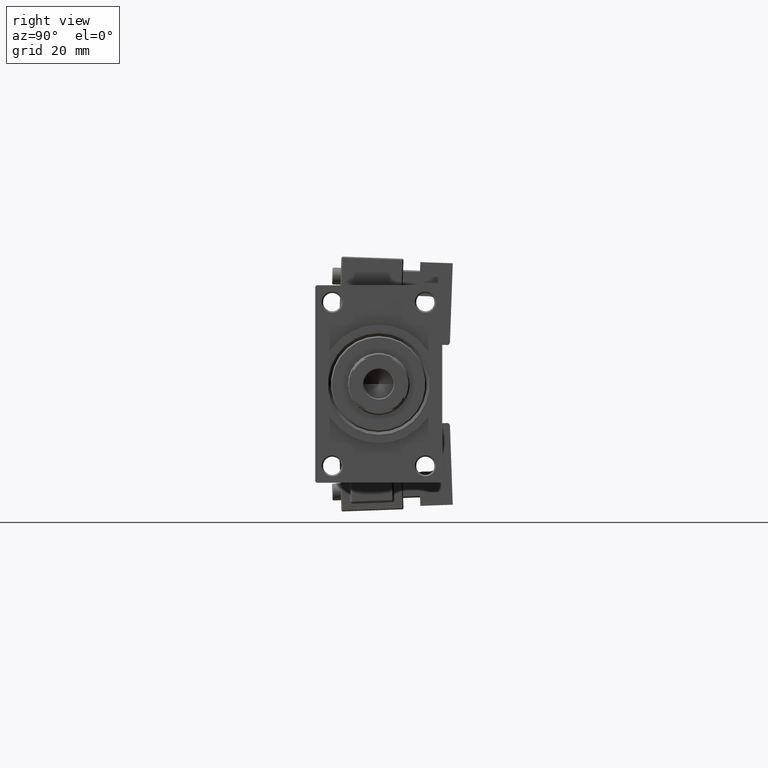
[diagram: clean part render]
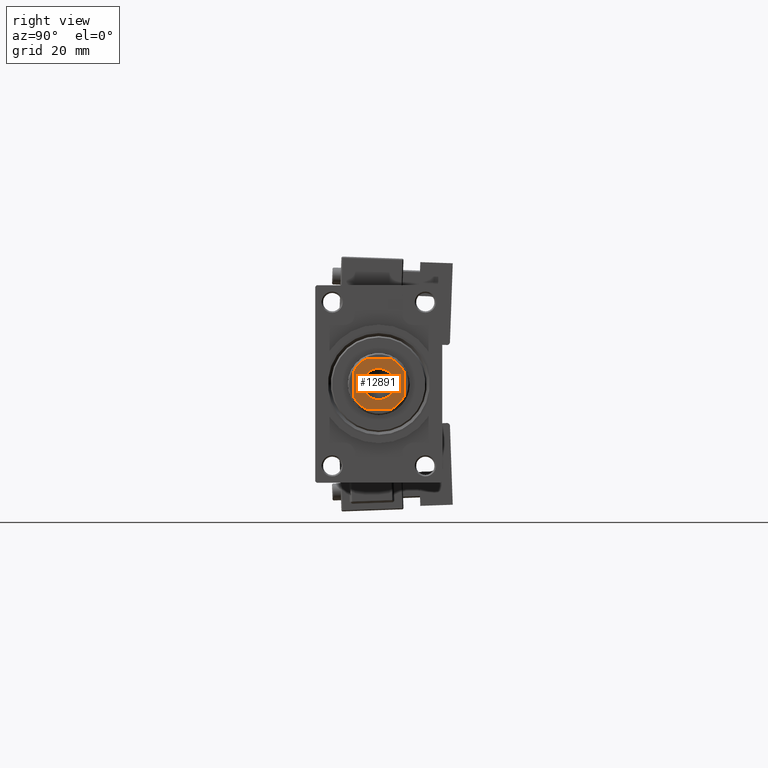
[diagram: same view with one face highlighted and labeled with its STEP entity id]
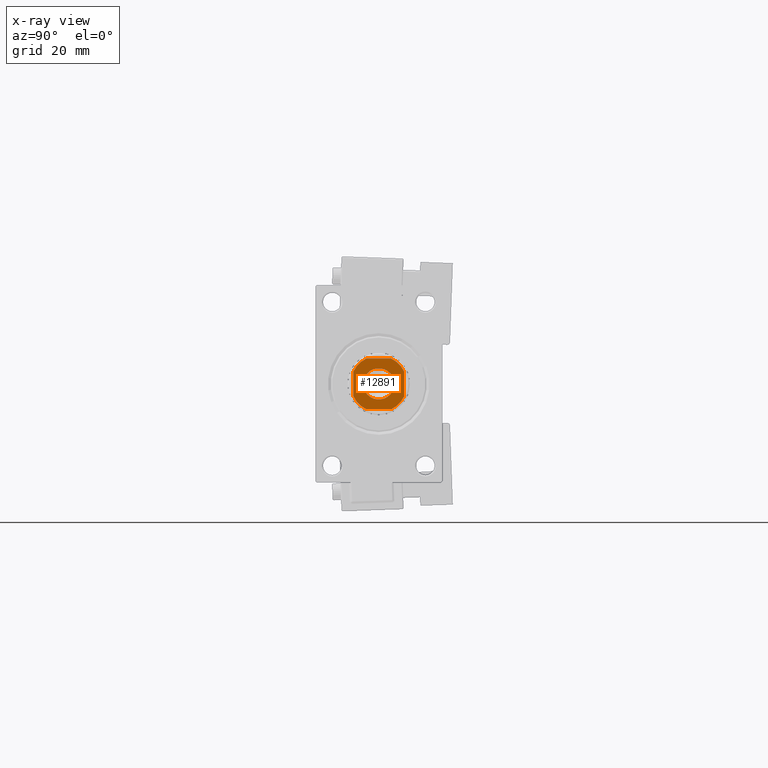
[diagram: x-ray of the same camera — body ghosted, the highlighted face saturated]
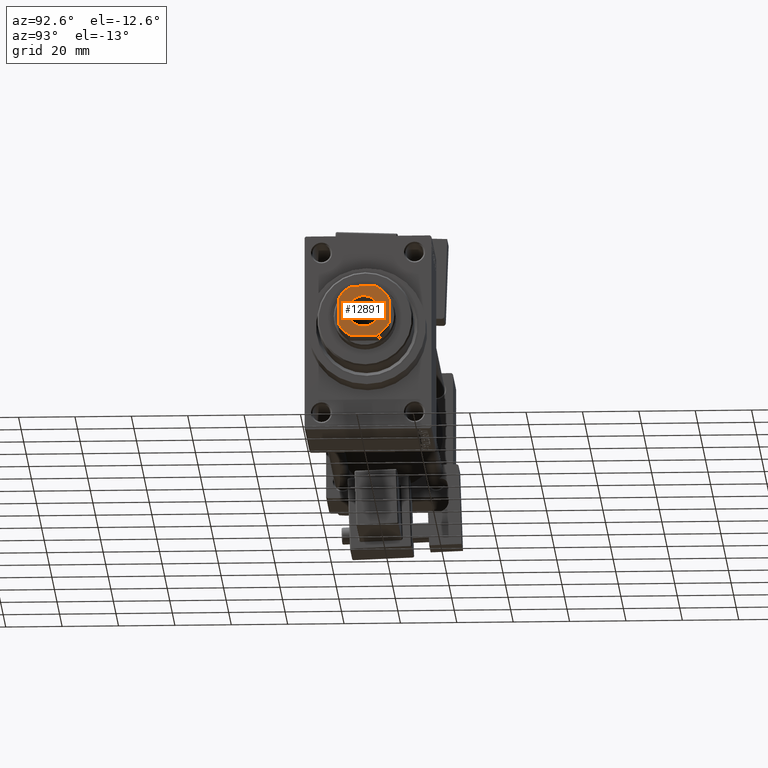
[diagram: same view with one face highlighted and labeled with its STEP entity id]
A machine part, right view. The second image highlights one B-rep face of the part: STEP entity #12891.
The next image is the same camera in x-ray: the body ghosted, the highlighted face saturated — about 0% of this face is hidden behind the body in this view.
A second angle (auxiliary view) of the same face is appended — the face is thin or edge-on in the first view.
In plain terms, the highlighted planar face has unit normal (1, 0, 0).
Its self-contained STEP definition (entity closure, byte-faithful):
#296 = CARTESIAN_POINT ( 'NONE',  ( -4.358898943540588711, -9.000000000000001776, 203.0000000000000000 ) ) ;
#418 = VECTOR ( 'NONE', #5779, 1000.000000000000000 ) ;
#663 = CARTESIAN_POINT ( 'NONE',  ( 0.000000000000000000, 0.000000000000000000, 203.0000000000000000 ) ) ;
#1910 = EDGE_CURVE ( 'NONE', #41082, #11009, #27632, .T. ) ;
#3164 = AXIS2_PLACEMENT_3D ( 'NONE', #29231, #36747, #41002 ) ;
#3388 = CARTESIAN_POINT ( 'NONE',  ( 5.549999999999943867, 0.000000000000000000, 203.0000000000000000 ) ) ;
#4117 = ORIENTED_EDGE ( 'NONE', *, *, #17912, .T. ) ;
#4415 = AXIS2_PLACEMENT_3D ( 'NONE', #663, #38667, #19654 ) ;
#4972 = VERTEX_POINT ( 'NONE', #296 ) ;
#5779 = DIRECTION ( 'NONE',  ( -1.927470528863119049E-16, 1.000000000000000000, -0.000000000000000000 ) ) ;
#5971 = CARTESIAN_POINT ( 'NONE',  ( -9.000000000000001776, -9.000000000000001776, 203.0000000000000000 ) ) ;
#6259 = PLANE ( 'NONE',  #3164 ) ;
#6883 = ORIENTED_EDGE ( 'NONE', *, *, #1910, .T. ) ;
#6981 = VERTEX_POINT ( 'NONE', #35107 ) ;
#8182 = AXIS2_PLACEMENT_3D ( 'NONE', #33851, #41619, #41374 ) ;
#9531 = LINE ( 'NONE', #24757, #418 ) ;
#9774 = VERTEX_POINT ( 'NONE', #48358 ) ;
#10863 = CARTESIAN_POINT ( 'NONE',  ( 4.358898943540889803, 8.999999999999998224, 203.0000000000000000 ) ) ;
#11009 = VERTEX_POINT ( 'NONE', #17360 ) ;
#11158 = VECTOR ( 'NONE', #25121, 1000.000000000000000 ) ;
#12045 = ORIENTED_EDGE ( 'NONE', *, *, #29300, .T. ) ;
#12545 = DIRECTION ( 'NONE',  ( -0.000000000000000000, 0.000000000000000000, 1.000000000000000000 ) ) ;
#12891 = ADVANCED_FACE ( 'NONE', ( #24239, #39509 ), #6259, .T. ) ;
#13040 = DIRECTION ( 'NONE',  ( 1.000000000000000000, 0.000000000000000000, 0.000000000000000000 ) ) ;
#13148 = DIRECTION ( 'NONE',  ( -0.000000000000000000, 0.000000000000000000, 1.000000000000000000 ) ) ;
#13510 = EDGE_CURVE ( 'NONE', #23613, #41518, #40390, .T. ) ;
#14032 = CIRCLE ( 'NONE', #4415, 5.549999999999943867 ) ;
#14462 = EDGE_LOOP ( 'NONE', ( #6883, #28244 ) ) ;
#15064 = CIRCLE ( 'NONE', #34026, 9.999999999999964473 ) ;
#15709 = DIRECTION ( 'NONE',  ( -0.000000000000000000, 0.000000000000000000, 1.000000000000000000 ) ) ;
#16746 = VERTEX_POINT ( 'NONE', #45753 ) ;
#17006 = ORIENTED_EDGE ( 'NONE', *, *, #29852, .T. ) ;
#17360 = CARTESIAN_POINT ( 'NONE',  ( -5.549999999999943867, 6.796789735267741755E-16, 203.0000000000000000 ) ) ;
#17912 = EDGE_CURVE ( 'NONE', #37692, #9774, #35421, .T. ) ;
#19654 = DIRECTION ( 'NONE',  ( 1.000000000000000000, 0.000000000000000000, 0.000000000000000000 ) ) ;
#20155 = CIRCLE ( 'NONE', #8182, 10.00000000000009237 ) ;
#21136 = DIRECTION ( 'NONE',  ( 1.000000000000000000, 0.000000000000000000, 0.000000000000000000 ) ) ;
#21372 = CARTESIAN_POINT ( 'NONE',  ( -9.000000000000003553, 8.999999999999998224, 203.0000000000000000 ) ) ;
#21677 = VECTOR ( 'NONE', #42701, 1000.000000000000000 ) ;
#23132 = CARTESIAN_POINT ( 'NONE',  ( 0.000000000000000000, 0.000000000000000000, 203.0000000000000000 ) ) ;
#23613 = VERTEX_POINT ( 'NONE', #25998 ) ;
#24239 = FACE_BOUND ( 'NONE', #14462, .T. ) ;
#24757 = CARTESIAN_POINT ( 'NONE',  ( 8.999999999999996447, 8.999999999999998224, 203.0000000000000000 ) ) ;
#25121 = DIRECTION ( 'NONE',  ( 9.637352644315595243E-17, -1.000000000000000000, 0.000000000000000000 ) ) ;
#25452 = DIRECTION ( 'NONE',  ( 1.000000000000000000, 0.000000000000000000, 0.000000000000000000 ) ) ;
#25975 = ORIENTED_EDGE ( 'NONE', *, *, #13510, .T. ) ;
#25998 = CARTESIAN_POINT ( 'NONE',  ( -9.000000000000003553, 4.358898943540677529, 203.0000000000000000 ) ) ;
#27632 = CIRCLE ( 'NONE', #34799, 5.549999999999943867 ) ;
#27684 = DIRECTION ( 'NONE',  ( 1.000000000000000000, 0.000000000000000000, 0.000000000000000000 ) ) ;
#28244 = ORIENTED_EDGE ( 'NONE', *, *, #40035, .T. ) ;
#29231 = CARTESIAN_POINT ( 'NONE',  ( 0.000000000000000000, 0.000000000000000000, 203.0000000000000000 ) ) ;
#29300 = EDGE_CURVE ( 'NONE', #9774, #23613, #39343, .T. ) ;
#29852 = EDGE_CURVE ( 'NONE', #6981, #37692, #20155, .T. ) ;
#30542 = AXIS2_PLACEMENT_3D ( 'NONE', #40157, #13148, #21136 ) ;
#31447 = CARTESIAN_POINT ( 'NONE',  ( 0.000000000000000000, 0.000000000000000000, 203.0000000000000000 ) ) ;
#31666 = CARTESIAN_POINT ( 'NONE',  ( -9.000000000000003553, 8.999999999999998224, 203.0000000000000000 ) ) ;
#31783 = CARTESIAN_POINT ( 'NONE',  ( -9.000000000000003553, -4.358898943540586046, 203.0000000000000000 ) ) ;
#32953 = LINE ( 'NONE', #5971, #38537 ) ;
#33699 = EDGE_CURVE ( 'NONE', #16746, #37235, #45754, .T. ) ;
#33851 = CARTESIAN_POINT ( 'NONE',  ( 0.000000000000000000, 0.000000000000000000, 203.0000000000000000 ) ) ;
#33972 = EDGE_CURVE ( 'NONE', #4972, #16746, #32953, .T. ) ;
#34026 = AXIS2_PLACEMENT_3D ( 'NONE', #46794, #12545, #13040 ) ;
#34799 = AXIS2_PLACEMENT_3D ( 'NONE', #23132, #45418, #41668 ) ;
#35107 = CARTESIAN_POINT ( 'NONE',  ( 8.999999999999998224, 4.358898943540891580, 203.0000000000000000 ) ) ;
#35421 = LINE ( 'NONE', #31666, #21677 ) ;
#36631 = EDGE_LOOP ( 'NONE', ( #37880, #17006, #4117, #12045, #25975, #40401, #39005, #36900 ) ) ;
#36747 = DIRECTION ( 'NONE',  ( -0.000000000000000000, 0.000000000000000000, 1.000000000000000000 ) ) ;
#36900 = ORIENTED_EDGE ( 'NONE', *, *, #33699, .T. ) ;
#37235 = VERTEX_POINT ( 'NONE', #48201 ) ;
#37692 = VERTEX_POINT ( 'NONE', #10863 ) ;
#37880 = ORIENTED_EDGE ( 'NONE', *, *, #39061, .T. ) ;
#38537 = VECTOR ( 'NONE', #25452, 1000.000000000000000 ) ;
#38667 = DIRECTION ( 'NONE',  ( 0.000000000000000000, -0.000000000000000000, -1.000000000000000000 ) ) ;
#39005 = ORIENTED_EDGE ( 'NONE', *, *, #33972, .T. ) ;
#39061 = EDGE_CURVE ( 'NONE', #37235, #6981, #9531, .T. ) ;
#39343 = CIRCLE ( 'NONE', #45728, 10.00000000000000355 ) ;
#39509 = FACE_OUTER_BOUND ( 'NONE', #36631, .T. ) ;
#40035 = EDGE_CURVE ( 'NONE', #11009, #41082, #14032, .T. ) ;
#40157 = CARTESIAN_POINT ( 'NONE',  ( 0.000000000000000000, 0.000000000000000000, 203.0000000000000000 ) ) ;
#40390 = LINE ( 'NONE', #21372, #11158 ) ;
#40401 = ORIENTED_EDGE ( 'NONE', *, *, #48440, .T. ) ;
#41002 = DIRECTION ( 'NONE',  ( 1.000000000000000000, 0.000000000000000000, 0.000000000000000000 ) ) ;
#41082 = VERTEX_POINT ( 'NONE', #3388 ) ;
#41374 = DIRECTION ( 'NONE',  ( 1.000000000000000000, 0.000000000000000000, 0.000000000000000000 ) ) ;
#41518 = VERTEX_POINT ( 'NONE', #31783 ) ;
#41619 = DIRECTION ( 'NONE',  ( -0.000000000000000000, 0.000000000000000000, 1.000000000000000000 ) ) ;
#41668 = DIRECTION ( 'NONE',  ( 1.000000000000000000, 0.000000000000000000, 0.000000000000000000 ) ) ;
#42701 = DIRECTION ( 'NONE',  ( -1.000000000000000000, -0.000000000000000000, -0.000000000000000000 ) ) ;
#45418 = DIRECTION ( 'NONE',  ( 0.000000000000000000, -0.000000000000000000, -1.000000000000000000 ) ) ;
#45728 = AXIS2_PLACEMENT_3D ( 'NONE', #31447, #15709, #27684 ) ;
#45753 = CARTESIAN_POINT ( 'NONE',  ( 4.358898943540679305, -9.000000000000001776, 203.0000000000000000 ) ) ;
#45754 = CIRCLE ( 'NONE', #30542, 10.00000000000000355 ) ;
#46794 = CARTESIAN_POINT ( 'NONE',  ( 0.000000000000000000, 0.000000000000000000, 203.0000000000000000 ) ) ;
#48201 = CARTESIAN_POINT ( 'NONE',  ( 8.999999999999998224, -4.358898943540684634, 203.0000000000000000 ) ) ;
#48358 = CARTESIAN_POINT ( 'NONE',  ( -4.358898943540686410, 8.999999999999998224, 203.0000000000000000 ) ) ;
#48440 = EDGE_CURVE ( 'NONE', #41518, #4972, #15064, .T. ) ;